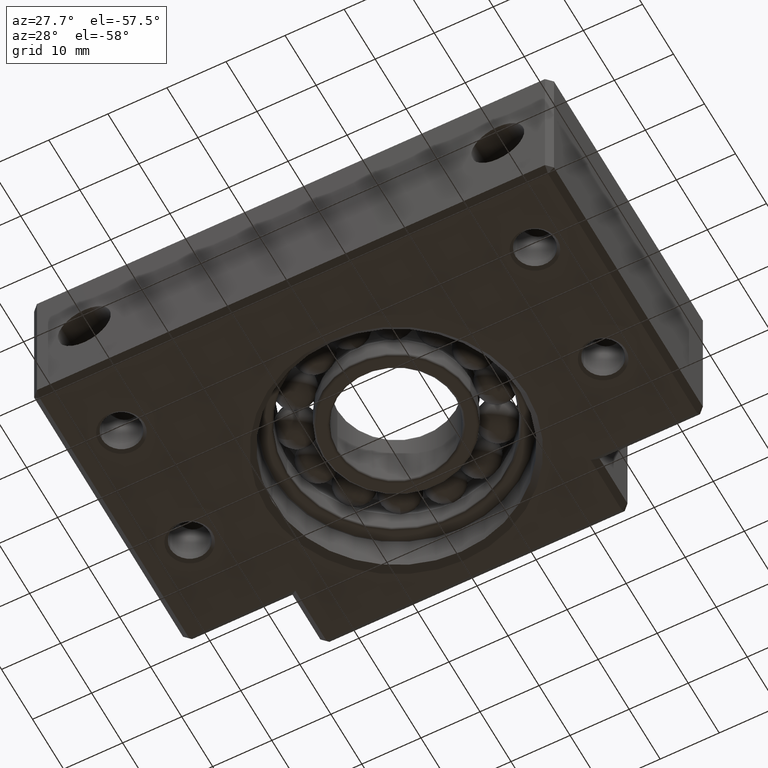
[diagram: clean part render]
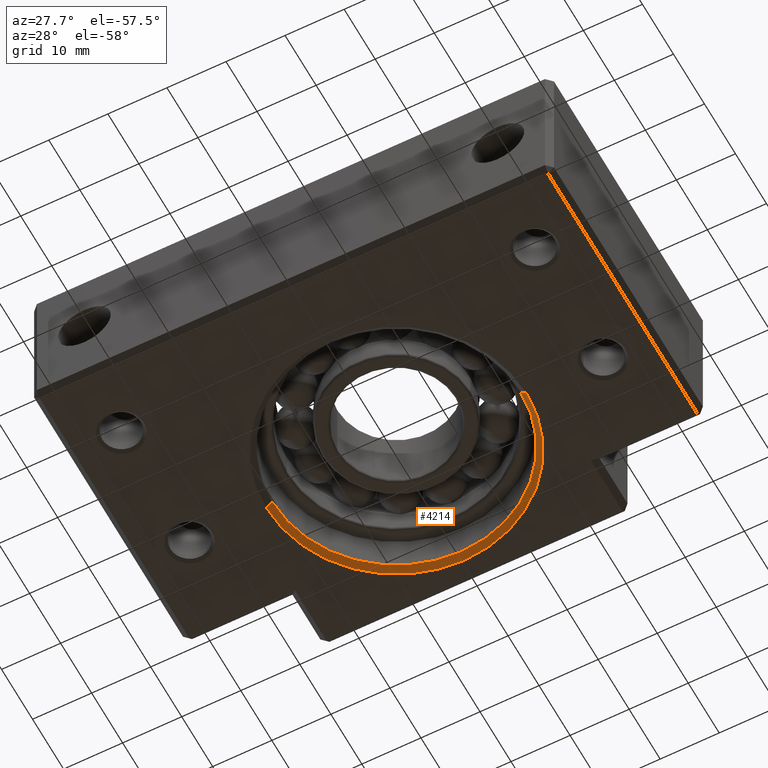
[diagram: same view with one face highlighted and labeled with its STEP entity id]
A machine part, auxiliary view. The second image highlights one B-rep face of the part: STEP entity #4214.
In plain terms, the highlighted conical surface has half-angle 45 deg.
Its self-contained STEP definition (entity closure, byte-faithful):
#573 = DIRECTION ( 'NONE',  ( 1.000000000000000000, 0.0000000000000000000, 0.0000000000000000000 ) ) ;
#574 = DIRECTION ( 'NONE',  ( -0.0000000000000000000, 0.0000000000000000000, 1.000000000000000000 ) ) ;
#575 = AXIS2_PLACEMENT_3D ( 'NONE', #582, #574, #573 ) ;
#576 = CIRCLE ( 'NONE', #575, 21.99999999999996800 ) ;
#582 = CARTESIAN_POINT ( 'NONE',  ( 1.296023444842289800E-014, 34.00000000000000000, -13.00000000000000000 ) ) ;
#686 = CARTESIAN_POINT ( 'NONE',  ( -21.99999999999995400, 34.00000000000000000, -13.00000000000000000 ) ) ;
#1739 = DIRECTION ( 'NONE',  ( 1.000000000000000000, 0.0000000000000000000, 0.0000000000000000000 ) ) ;
#1740 = DIRECTION ( 'NONE',  ( -0.0000000000000000000, -0.0000000000000000000, -1.000000000000000000 ) ) ;
#1741 = CARTESIAN_POINT ( 'NONE',  ( 1.296023444842289800E-014, 34.00000000000000000, -12.00000000000003700 ) ) ;
#1742 = AXIS2_PLACEMENT_3D ( 'NONE', #1741, #1740, #1739 ) ;
#1743 = CIRCLE ( 'NONE', #1742, 21.00000000000000000 ) ;
#1764 = DIRECTION ( 'NONE',  ( 0.7071067811865487900, 8.659274570719371400E-017, -0.7071067811865463500 ) ) ;
#1765 = VECTOR ( 'NONE', #1764, 1000.000000000000000 ) ;
#1766 = CARTESIAN_POINT ( 'NONE',  ( 21.99999999999998200, 34.00000000000000000, -13.00000000000000000 ) ) ;
#1767 = LINE ( 'NONE', #1766, #1765 ) ;
#1958 = DIRECTION ( 'NONE',  ( -0.7071067811865487900, 0.0000000000000000000, -0.7071067811865463500 ) ) ;
#1959 = VECTOR ( 'NONE', #1958, 1000.000000000000000 ) ;
#1960 = CARTESIAN_POINT ( 'NONE',  ( -21.99999999999995400, 34.00000000000000000, -13.00000000000000000 ) ) ;
#1961 = LINE ( 'NONE', #1960, #1959 ) ;
#2093 = CARTESIAN_POINT ( 'NONE',  ( 21.99999999999998200, 34.00000000000000000, -13.00000000000000000 ) ) ;
#2115 = DIRECTION ( 'NONE',  ( -1.000000000000000000, 0.0000000000000000000, 0.0000000000000000000 ) ) ;
#2116 = DIRECTION ( 'NONE',  ( -0.0000000000000000000, -0.0000000000000000000, -1.000000000000000000 ) ) ;
#2117 = AXIS2_PLACEMENT_3D ( 'NONE', #2125, #2116, #2115 ) ;
#2118 = CONICAL_SURFACE ( 'NONE', #2117, 21.99999999999996800, 0.7853981633974501700 ) ;
#2119 = FACE_OUTER_BOUND ( 'NONE', #4208, .T. ) ;
#2125 = CARTESIAN_POINT ( 'NONE',  ( 1.296023444842289800E-014, 34.00000000000000000, -13.00000000000000000 ) ) ;
#2851 = CARTESIAN_POINT ( 'NONE',  ( -20.99999999999998600, 34.00000000000000000, -12.00000000000003700 ) ) ;
#2857 = CARTESIAN_POINT ( 'NONE',  ( 21.00000000000001400, 34.00000000000000000, -12.00000000000003700 ) ) ;
#3543 = EDGE_CURVE ( 'NONE', #4186, #3620, #576, .T. ) ;
#3620 = VERTEX_POINT ( 'NONE', #686 ) ;
#4027 = EDGE_CURVE ( 'NONE', #4628, #4626, #1743, .T. ) ;
#4039 = EDGE_CURVE ( 'NONE', #4626, #4186, #1767, .T. ) ;
#4124 = EDGE_CURVE ( 'NONE', #4628, #3620, #1961, .T. ) ;
#4186 = VERTEX_POINT ( 'NONE', #2093 ) ;
#4208 = EDGE_LOOP ( 'NONE', ( #4211, #4209, #4210, #4212 ) ) ;
#4209 = ORIENTED_EDGE ( 'NONE', *, *, #4027, .F. ) ;
#4210 = ORIENTED_EDGE ( 'NONE', *, *, #4124, .T. ) ;
#4211 = ORIENTED_EDGE ( 'NONE', *, *, #4039, .F. ) ;
#4212 = ORIENTED_EDGE ( 'NONE', *, *, #3543, .F. ) ;
#4214 = ADVANCED_FACE ( 'NONE', ( #2119 ), #2118, .F. ) ;
#4626 = VERTEX_POINT ( 'NONE', #2857 ) ;
#4628 = VERTEX_POINT ( 'NONE', #2851 ) ;